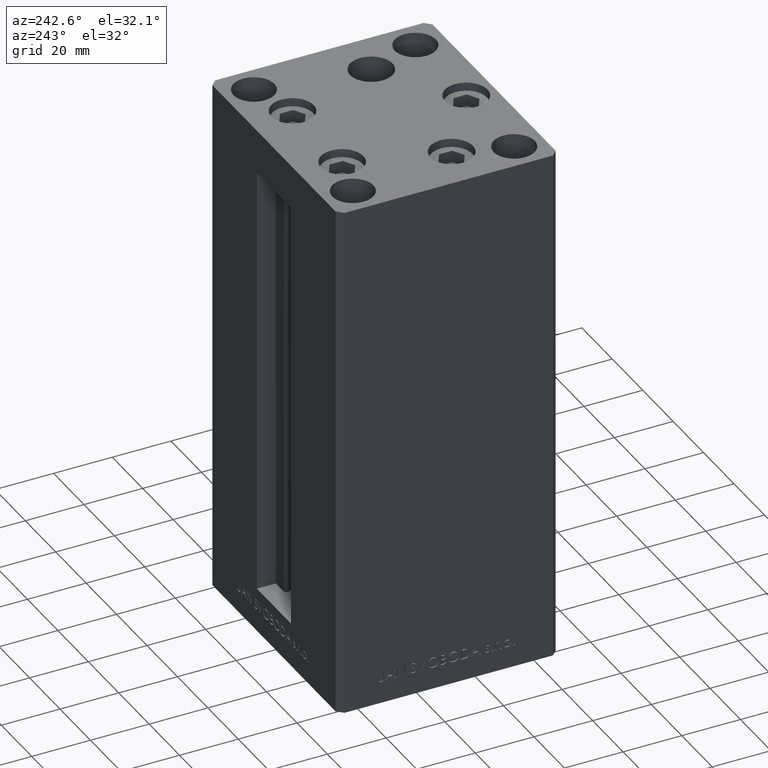
[diagram: clean part render]
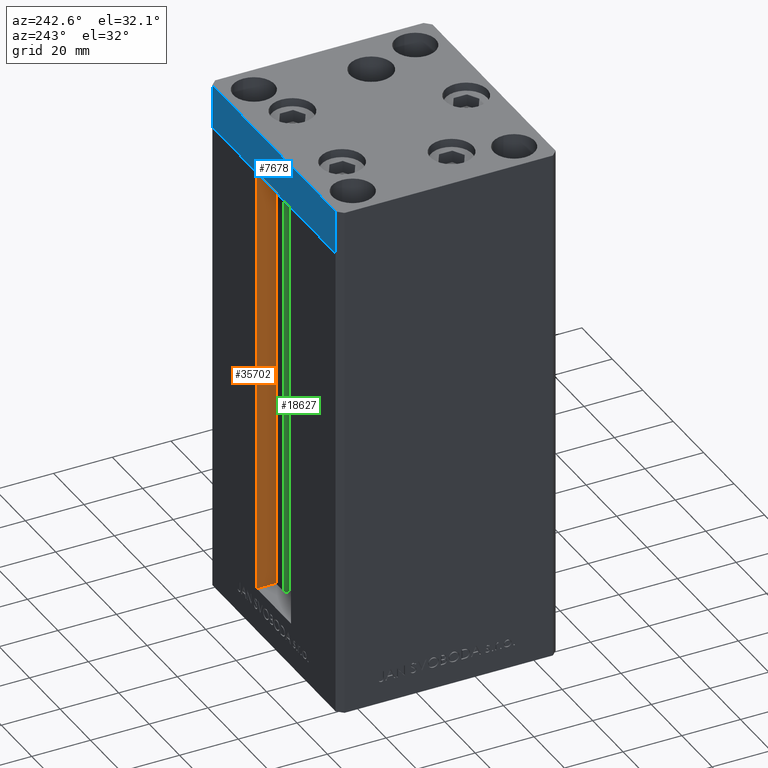
[diagram: same view with three faces highlighted in distinct colors, each labeled with its STEP entity id]
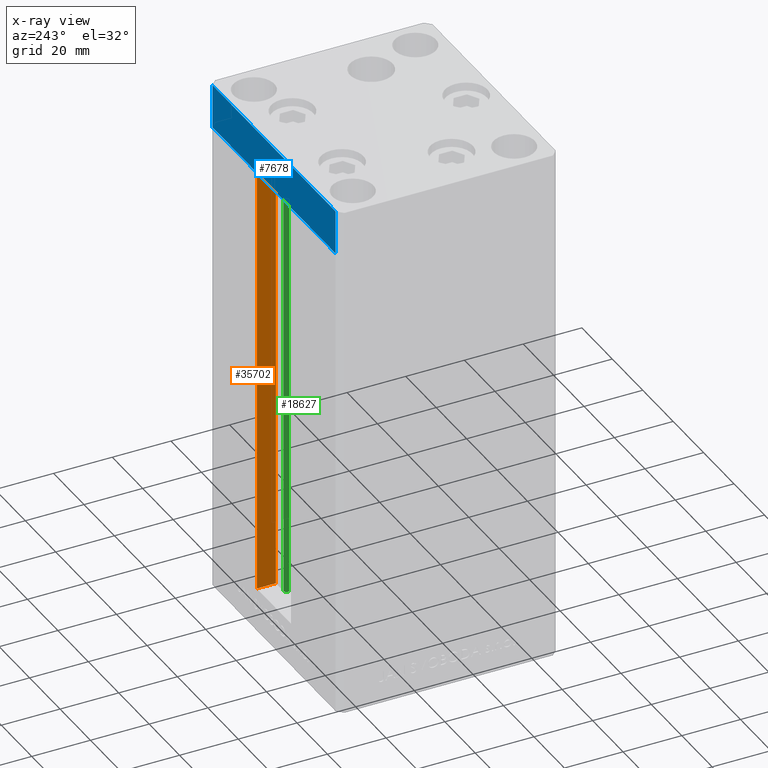
[diagram: x-ray of the same camera — body ghosted, the three highlighted faces saturated]
A machine part, auxiliary view with three faces highlighted in distinct colors.
The next image is the same camera in x-ray (body ghosted, the three faces saturated) — at least one of them is partly hidden behind the body in this view.
Their STEP definitions:

[orange] entity #35702 — the highlighted planar face has unit normal (1, 0, 0).
#1248 = CARTESIAN_POINT ( 'NONE',  ( 11.25000000000000000, 30.99999999999999289, 0.000000000000000000 ) ) ;
#1286 = EDGE_CURVE ( 'NONE', #41540, #18381, #24171, .T. ) ;
#2982 = VECTOR ( 'NONE', #10442, 1000.000000000000000 ) ;
#6855 = ORIENTED_EDGE ( 'NONE', *, *, #39205, .F. ) ;
#7430 = VERTEX_POINT ( 'NONE', #17129 ) ;
#7999 = FACE_OUTER_BOUND ( 'NONE', #44422, .T. ) ;
#9337 = VECTOR ( 'NONE', #39756, 1000.000000000000000 ) ;
#9604 = VERTEX_POINT ( 'NONE', #42240 ) ;
#10442 = DIRECTION ( 'NONE',  ( -0.000000000000000000, -0.000000000000000000, 1.000000000000000000 ) ) ;
#11665 = EDGE_CURVE ( 'NONE', #41540, #9604, #19549, .T. ) ;
#17129 = CARTESIAN_POINT ( 'NONE',  ( 11.24999999999999289, 37.50000000000000000, 148.5000000000000000 ) ) ;
#18381 = VERTEX_POINT ( 'NONE', #30706 ) ;
#19549 = LINE ( 'NONE', #1248, #42721 ) ;
#23764 = DIRECTION ( 'NONE',  ( -0.000000000000000000, -0.000000000000000000, 1.000000000000000000 ) ) ;
#24171 = LINE ( 'NONE', #39018, #9337 ) ;
#24633 = LINE ( 'NONE', #28588, #42412 ) ;
#25120 = DIRECTION ( 'NONE',  ( -0.000000000000000000, -1.000000000000000000, 0.000000000000000000 ) ) ;
#28588 = CARTESIAN_POINT ( 'NONE',  ( 11.25000000000000000, 0.000000000000000000, 148.5000000000000000 ) ) ;
#30388 = ORIENTED_EDGE ( 'NONE', *, *, #11665, .T. ) ;
#30706 = CARTESIAN_POINT ( 'NONE',  ( 11.25000000000000000, 37.50000000000000000, 0.000000000000000000 ) ) ;
#30827 = ORIENTED_EDGE ( 'NONE', *, *, #46448, .F. ) ;
#32678 = ORIENTED_EDGE ( 'NONE', *, *, #1286, .F. ) ;
#33205 = LINE ( 'NONE', #36203, #2982 ) ;
#34228 = DIRECTION ( 'NONE',  ( 0.000000000000000000, 0.000000000000000000, -1.000000000000000000 ) ) ;
#35702 = ADVANCED_FACE ( 'NONE', ( #7999 ), #41663, .F. ) ;
#36203 = CARTESIAN_POINT ( 'NONE',  ( 11.25000000000000000, 37.50000000000000000, 0.000000000000000000 ) ) ;
#38189 = CARTESIAN_POINT ( 'NONE',  ( 11.25000000000000000, 30.99999999999999289, 0.000000000000000000 ) ) ;
#38438 = DIRECTION ( 'NONE',  ( 1.000000000000000000, -0.000000000000000000, 0.000000000000000000 ) ) ;
#39018 = CARTESIAN_POINT ( 'NONE',  ( 11.25000000000000000, 30.99999999999999289, 0.000000000000000000 ) ) ;
#39097 = AXIS2_PLACEMENT_3D ( 'NONE', #38189, #38438, #34228 ) ;
#39205 = EDGE_CURVE ( 'NONE', #7430, #9604, #24633, .T. ) ;
#39756 = DIRECTION ( 'NONE',  ( 0.000000000000000000, 1.000000000000000000, 0.000000000000000000 ) ) ;
#41540 = VERTEX_POINT ( 'NONE', #48021 ) ;
#41663 = PLANE ( 'NONE',  #39097 ) ;
#42240 = CARTESIAN_POINT ( 'NONE',  ( 11.25000000000000000, 30.99999999999999289, 148.5000000000000000 ) ) ;
#42412 = VECTOR ( 'NONE', #25120, 1000.000000000000000 ) ;
#42721 = VECTOR ( 'NONE', #23764, 1000.000000000000000 ) ;
#44422 = EDGE_LOOP ( 'NONE', ( #30827, #32678, #30388, #6855 ) ) ;
#46448 = EDGE_CURVE ( 'NONE', #18381, #7430, #33205, .T. ) ;
#48021 = CARTESIAN_POINT ( 'NONE',  ( 11.25000000000000000, 30.99999999999999289, 0.000000000000000000 ) ) ;

[blue] entity #7678 — the highlighted planar face has unit normal (-0, 1, 0).
#612 = CARTESIAN_POINT ( 'NONE',  ( 40.49999999999991473, 37.50000000000000711, -15.00000000000000000 ) ) ;
#860 = DIRECTION ( 'NONE',  ( -1.000000000000000000, -3.426614273534436165E-16, 0.000000000000000000 ) ) ;
#1734 = PLANE ( 'NONE',  #33110 ) ;
#2364 = VECTOR ( 'NONE', #860, 1000.000000000000000 ) ;
#4150 = VERTEX_POINT ( 'NONE', #10744 ) ;
#6777 = LINE ( 'NONE', #32524, #42448 ) ;
#7054 = DIRECTION ( 'NONE',  ( 0.000000000000000000, 0.000000000000000000, 1.000000000000000000 ) ) ;
#7678 = ADVANCED_FACE ( 'NONE', ( #27723 ), #1734, .T. ) ;
#8944 = EDGE_CURVE ( 'NONE', #9270, #10511, #15440, .T. ) ;
#9057 = EDGE_CURVE ( 'NONE', #10511, #28598, #35739, .T. ) ;
#9270 = VERTEX_POINT ( 'NONE', #17899 ) ;
#10150 = EDGE_CURVE ( 'NONE', #9270, #4150, #10244, .T. ) ;
#10244 = LINE ( 'NONE', #25353, #38759 ) ;
#10511 = VERTEX_POINT ( 'NONE', #37614 ) ;
#10744 = CARTESIAN_POINT ( 'NONE',  ( -40.50000000000000711, 37.49999999999997868, -15.00000000000000000 ) ) ;
#13862 = CARTESIAN_POINT ( 'NONE',  ( -40.50000000000000711, 37.49999999999997868, 0.000000000000000000 ) ) ;
#15440 = LINE ( 'NONE', #612, #18931 ) ;
#16871 = ORIENTED_EDGE ( 'NONE', *, *, #8944, .F. ) ;
#17899 = CARTESIAN_POINT ( 'NONE',  ( 40.49999999999991473, 37.50000000000000711, -15.00000000000000000 ) ) ;
#18931 = VECTOR ( 'NONE', #7054, 1000.000000000000000 ) ;
#24306 = ORIENTED_EDGE ( 'NONE', *, *, #44865, .T. ) ;
#25353 = CARTESIAN_POINT ( 'NONE',  ( 40.49999999999991473, 37.50000000000000711, -15.00000000000000000 ) ) ;
#27723 = FACE_OUTER_BOUND ( 'NONE', #28065, .T. ) ;
#28065 = EDGE_LOOP ( 'NONE', ( #46744, #16871, #42111, #24306 ) ) ;
#28598 = VERTEX_POINT ( 'NONE', #13862 ) ;
#31923 = DIRECTION ( 'NONE',  ( -3.426614273534436165E-16, 1.000000000000000000, 0.000000000000000000 ) ) ;
#32282 = DIRECTION ( 'NONE',  ( -1.000000000000000000, -3.426614273534436165E-16, 0.000000000000000000 ) ) ;
#32524 = CARTESIAN_POINT ( 'NONE',  ( -40.50000000000000711, 37.49999999999997868, -15.00000000000000000 ) ) ;
#33110 = AXIS2_PLACEMENT_3D ( 'NONE', #38601, #31923, #47027 ) ;
#33249 = DIRECTION ( 'NONE',  ( 0.000000000000000000, 0.000000000000000000, 1.000000000000000000 ) ) ;
#35247 = CARTESIAN_POINT ( 'NONE',  ( 40.49999999999991473, 37.50000000000000711, 0.000000000000000000 ) ) ;
#35739 = LINE ( 'NONE', #35247, #2364 ) ;
#37614 = CARTESIAN_POINT ( 'NONE',  ( 40.49999999999991473, 37.50000000000000711, 0.000000000000000000 ) ) ;
#38601 = CARTESIAN_POINT ( 'NONE',  ( 40.49999999999991473, 37.50000000000000711, -15.00000000000000000 ) ) ;
#38759 = VECTOR ( 'NONE', #32282, 1000.000000000000000 ) ;
#42111 = ORIENTED_EDGE ( 'NONE', *, *, #10150, .T. ) ;
#42448 = VECTOR ( 'NONE', #33249, 1000.000000000000000 ) ;
#44865 = EDGE_CURVE ( 'NONE', #4150, #28598, #6777, .T. ) ;
#46744 = ORIENTED_EDGE ( 'NONE', *, *, #9057, .F. ) ;
#47027 = DIRECTION ( 'NONE',  ( -1.000000000000000000, -3.426614273534436165E-16, 0.000000000000000000 ) ) ;

[green] entity #18627 — the highlighted cylindrical surface (edge-blend (fillet) strip) has radius 0.9333 mm, axis along (0, 0, 1).
#810 = CARTESIAN_POINT ( 'NONE',  ( 6.183333333333999704, 30.99999999999999289, 0.000000000000000000 ) ) ;
#1203 = CARTESIAN_POINT ( 'NONE',  ( 6.183333333333999704, 30.06666666666599141, 0.000000000000000000 ) ) ;
#1607 = CARTESIAN_POINT ( 'NONE',  ( 5.375042956467943611, 29.59999999999899245, 0.000000000000000000 ) ) ;
#1839 = VERTEX_POINT ( 'NONE', #16632 ) ;
#3640 = AXIS2_PLACEMENT_3D ( 'NONE', #41945, #44924, #7543 ) ;
#3704 = ORIENTED_EDGE ( 'NONE', *, *, #42109, .T. ) ;
#7543 = DIRECTION ( 'NONE',  ( 1.000000000000000000, 0.000000000000000000, 0.000000000000000000 ) ) ;
#12526 = ORIENTED_EDGE ( 'NONE', *, *, #38440, .F. ) ;
#12734 = DIRECTION ( 'NONE',  ( -0.000000000000000000, -0.000000000000000000, 1.000000000000000000 ) ) ;
#13200 = CARTESIAN_POINT ( 'NONE',  ( 6.183333333333999704, 30.99999999999999289, 148.5000000000000000 ) ) ;
#15792 = CYLINDRICAL_SURFACE ( 'NONE', #40460, 0.9333333333340015914 ) ;
#16632 = CARTESIAN_POINT ( 'NONE',  ( 6.183333333333999704, 30.99999999999999289, 0.000000000000000000 ) ) ;
#18627 = ADVANCED_FACE ( 'NONE', ( #38068 ), #15792, .T. ) ;
#21482 = CARTESIAN_POINT ( 'NONE',  ( 5.375042956467943611, 29.59999999999899245, 0.000000000000000000 ) ) ;
#24191 = VECTOR ( 'NONE', #12734, 1000.000000000000000 ) ;
#24854 = LINE ( 'NONE', #1607, #24191 ) ;
#25162 = DIRECTION ( 'NONE',  ( 0.000000000000000000, 0.000000000000000000, -1.000000000000000000 ) ) ;
#26929 = ORIENTED_EDGE ( 'NONE', *, *, #48489, .F. ) ;
#27321 = EDGE_LOOP ( 'NONE', ( #26929, #12526, #3704, #46814 ) ) ;
#28865 = CARTESIAN_POINT ( 'NONE',  ( 6.183333333333999704, 30.06666666666599141, 148.5000000000000000 ) ) ;
#28960 = CIRCLE ( 'NONE', #3640, 0.9333333333340015914 ) ;
#30282 = VERTEX_POINT ( 'NONE', #13200 ) ;
#30486 = DIRECTION ( 'NONE',  ( -0.000000000000000000, -0.000000000000000000, 1.000000000000000000 ) ) ;
#30888 = DIRECTION ( 'NONE',  ( 1.000000000000000000, 0.000000000000000000, 0.000000000000000000 ) ) ;
#31224 = LINE ( 'NONE', #810, #44905 ) ;
#32051 = VERTEX_POINT ( 'NONE', #21482 ) ;
#33525 = CARTESIAN_POINT ( 'NONE',  ( 5.375042956467944499, 29.59999999999899245, 148.5000000000000000 ) ) ;
#37492 = EDGE_CURVE ( 'NONE', #37564, #30282, #46298, .T. ) ;
#37564 = VERTEX_POINT ( 'NONE', #33525 ) ;
#38068 = FACE_OUTER_BOUND ( 'NONE', #27321, .T. ) ;
#38440 = EDGE_CURVE ( 'NONE', #32051, #1839, #28960, .T. ) ;
#40460 = AXIS2_PLACEMENT_3D ( 'NONE', #1203, #46235, #30888 ) ;
#41945 = CARTESIAN_POINT ( 'NONE',  ( 6.183333333333999704, 30.06666666666599141, 0.000000000000000000 ) ) ;
#42109 = EDGE_CURVE ( 'NONE', #32051, #37564, #24854, .T. ) ;
#44905 = VECTOR ( 'NONE', #30486, 1000.000000000000000 ) ;
#44924 = DIRECTION ( 'NONE',  ( -0.000000000000000000, -0.000000000000000000, -1.000000000000000000 ) ) ;
#45648 = DIRECTION ( 'NONE',  ( 1.000000000000000000, 0.000000000000000000, 0.000000000000000000 ) ) ;
#46235 = DIRECTION ( 'NONE',  ( -0.000000000000000000, -0.000000000000000000, 1.000000000000000000 ) ) ;
#46298 = CIRCLE ( 'NONE', #47095, 0.9333333333340015914 ) ;
#46814 = ORIENTED_EDGE ( 'NONE', *, *, #37492, .T. ) ;
#47095 = AXIS2_PLACEMENT_3D ( 'NONE', #28865, #25162, #45648 ) ;
#48489 = EDGE_CURVE ( 'NONE', #1839, #30282, #31224, .T. ) ;